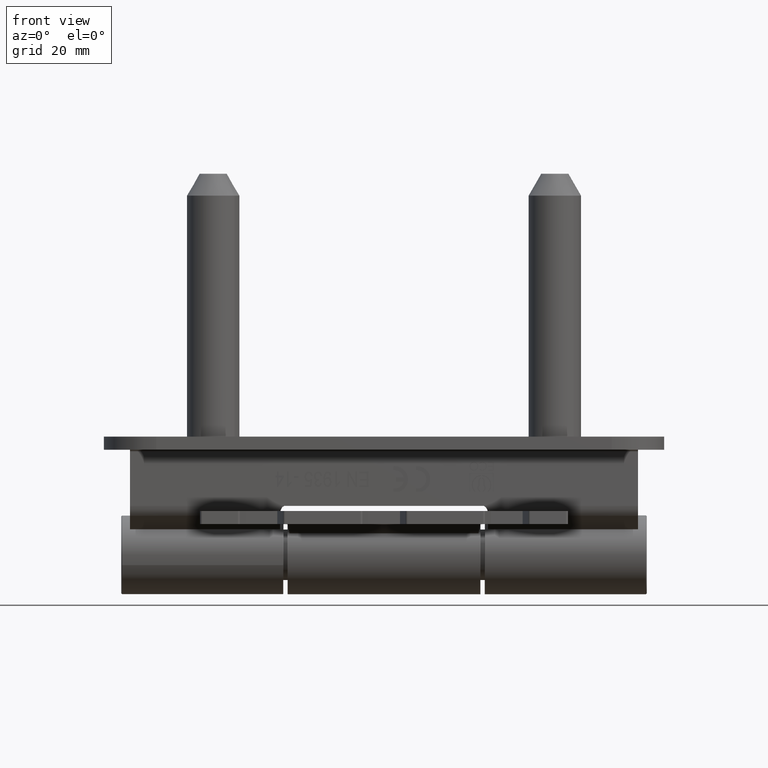
[diagram: clean part render]
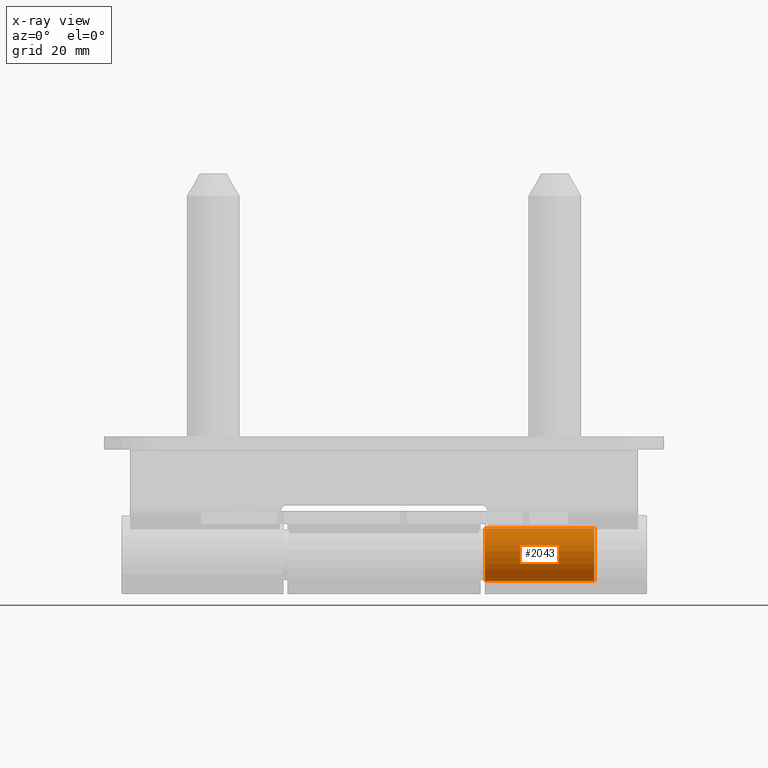
[diagram: x-ray — body ghosted, one internal face saturated and labeled with its STEP entity id]
A machine part, front view, then the same camera in x-ray: the body is ghosted and one INTERNAL B-rep face — a face not visible from any outside direction — is saturated and labeled: STEP entity #2043.
In plain terms, the highlighted cylindrical surface (edge-blend (fillet) strip) has radius 6 mm, axis along (-1, -0, -0).
Its self-contained STEP definition (entity closure, byte-faithful):
#184 = EDGE_CURVE ( 'NONE', #2474, #4742, #7721, .T. ) ;
#478 = CARTESIAN_POINT ( 'NONE',  ( 25.50000000000000355, 6.938893903907228378E-15, 6.000000000000000888 ) ) ;
#657 = CARTESIAN_POINT ( 'NONE',  ( 25.00000000000000000, 7.372574772901431729E-15, -6.938893903907228378E-15 ) ) ;
#753 = ORIENTED_EDGE ( 'NONE', *, *, #4324, .F. ) ;
#974 = CARTESIAN_POINT ( 'NONE',  ( 1.278499105280872245E-30, 0.000000000000000000, 6.000000000000007994 ) ) ;
#1024 = AXIS2_PLACEMENT_3D ( 'NONE', #1292, #12053, #3845 ) ;
#1292 = CARTESIAN_POINT ( 'NONE',  ( 0.000000000000000000, 0.000000000000000000, 0.000000000000000000 ) ) ;
#2043 = ADVANCED_FACE ( 'NONE', ( #15186 ), #6067, .F. ) ;
#2474 = VERTEX_POINT ( 'NONE', #16997 ) ;
#3195 = DIRECTION ( 'NONE',  ( -1.000000000000000000, -1.470810103521394718E-32, -3.028644933645557041E-31 ) ) ;
#3845 = DIRECTION ( 'NONE',  ( 2.130831842134784448E-31, 0.000000000000000000, 1.000000000000000000 ) ) ;
#4324 = EDGE_CURVE ( 'NONE', #9138, #10583, #8955, .T. ) ;
#4435 = DIRECTION ( 'NONE',  ( 0.000000000000000000, 0.000000000000000000, 1.000000000000000000 ) ) ;
#4499 = ORIENTED_EDGE ( 'NONE', *, *, #5639, .F. ) ;
#4742 = VERTEX_POINT ( 'NONE', #974 ) ;
#5167 = ORIENTED_EDGE ( 'NONE', *, *, #184, .T. ) ;
#5228 = DIRECTION ( 'NONE',  ( -1.000000000000000000, -1.470810103521394718E-32, -3.028644933645557041E-31 ) ) ;
#5639 = EDGE_CURVE ( 'NONE', #10583, #4742, #15675, .T. ) ;
#5957 = CARTESIAN_POINT ( 'NONE',  ( 25.00000000000000000, 7.372574772901431729E-15, 6.000000000000000888 ) ) ;
#6067 = CYLINDRICAL_SURFACE ( 'NONE', #11717, 6.000000000000007994 ) ;
#6159 = DIRECTION ( 'NONE',  ( -1.000000000000000000, -1.470810103521394992E-32, -3.028644933645557041E-31 ) ) ;
#6621 = ORIENTED_EDGE ( 'NONE', *, *, #10221, .T. ) ;
#7721 = CIRCLE ( 'NONE', #1024, 6.000000000000007994 ) ;
#8955 = CIRCLE ( 'NONE', #14177, 6.000000000000007994 ) ;
#9138 = VERTEX_POINT ( 'NONE', #16887 ) ;
#10135 = DIRECTION ( 'NONE',  ( -1.000000000000000000, -1.470810103521394992E-32, -3.028644933645557041E-31 ) ) ;
#10221 = EDGE_CURVE ( 'NONE', #9138, #2474, #13615, .T. ) ;
#10322 = DIRECTION ( 'NONE',  ( 0.000000000000000000, 0.000000000000000000, 1.000000000000000000 ) ) ;
#10583 = VERTEX_POINT ( 'NONE', #5957 ) ;
#10739 = CARTESIAN_POINT ( 'NONE',  ( 25.50000000000000355, 7.673681983395642422E-15, -6.000000000000015099 ) ) ;
#11560 = CARTESIAN_POINT ( 'NONE',  ( 25.50000000000000355, 6.938893903907228378E-15, -6.938893903907227589E-15 ) ) ;
#11714 = VECTOR ( 'NONE', #5228, 1000.000000000000000 ) ;
#11717 = AXIS2_PLACEMENT_3D ( 'NONE', #11560, #6159, #4435 ) ;
#12053 = DIRECTION ( 'NONE',  ( -1.000000000000000000, -1.470810103521394992E-32, -3.028644933645557041E-31 ) ) ;
#13350 = VECTOR ( 'NONE', #3195, 1000.000000000000000 ) ;
#13615 = LINE ( 'NONE', #10739, #11714 ) ;
#14177 = AXIS2_PLACEMENT_3D ( 'NONE', #657, #10135, #10322 ) ;
#15186 = FACE_OUTER_BOUND ( 'NONE', #16011, .T. ) ;
#15675 = LINE ( 'NONE', #478, #13350 ) ;
#16011 = EDGE_LOOP ( 'NONE', ( #753, #6621, #5167, #4499 ) ) ;
#16887 = CARTESIAN_POINT ( 'NONE',  ( 25.00000000000000000, 8.107362852389845773E-15, -6.000000000000015099 ) ) ;
#16997 = CARTESIAN_POINT ( 'NONE',  ( 1.733336949948508765E-30, 7.673681983395628223E-15, -6.000000000000000000 ) ) ;